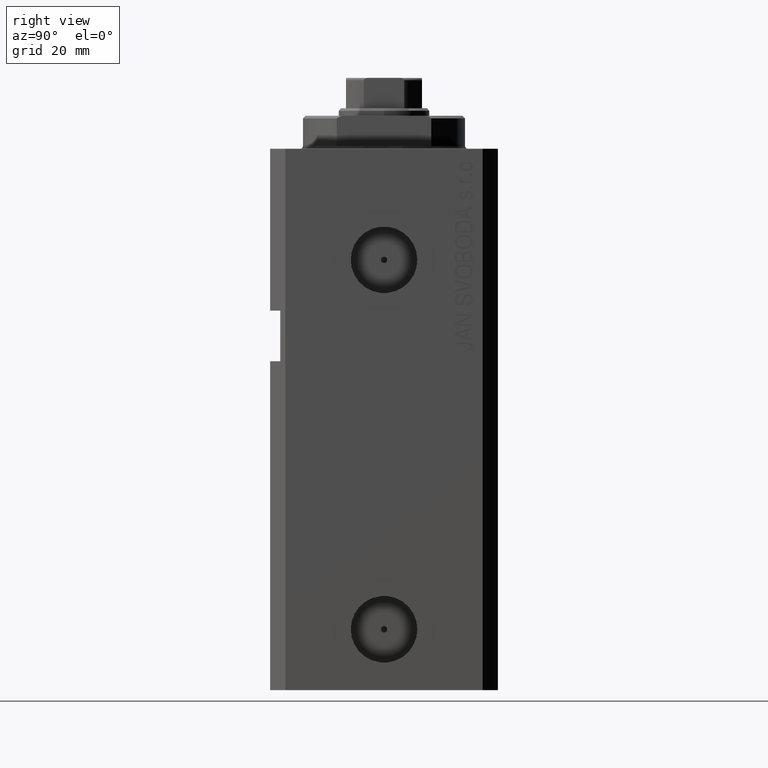
[diagram: clean part render]
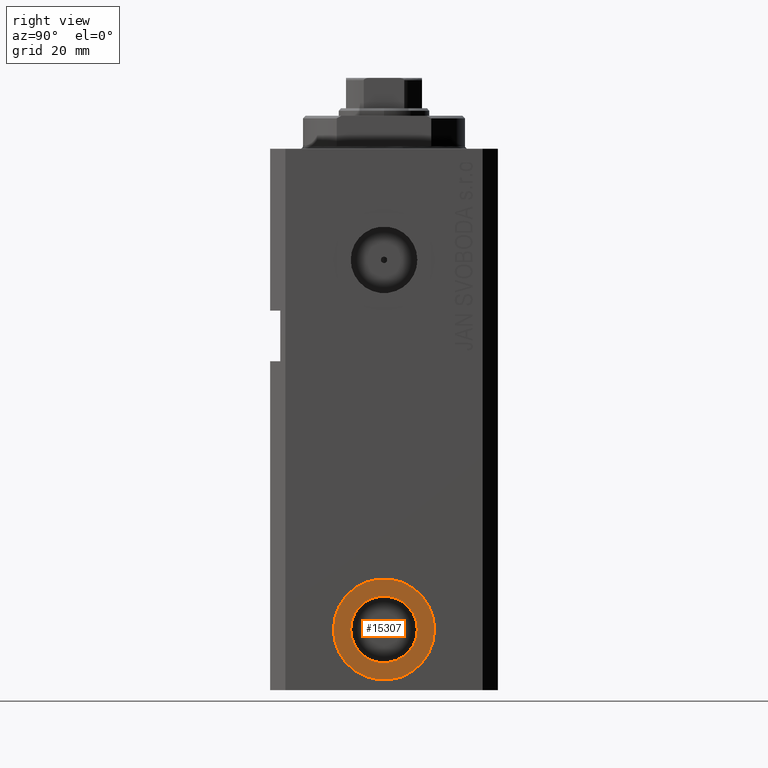
[diagram: same view with one face highlighted and labeled with its STEP entity id]
A machine part, right view. The second image highlights one B-rep face of the part: STEP entity #15307.
In plain terms, the highlighted planar face has unit normal (1, -0, 0).
Its self-contained STEP definition (entity closure, byte-faithful):
#1124 = EDGE_LOOP ( 'NONE', ( #29421, #20612 ) ) ;
#1137 = CARTESIAN_POINT ( 'NONE',  ( 32.39999999999677271, -4.323464663203420381E-13, -95.00000000000000000 ) ) ;
#1854 = CARTESIAN_POINT ( 'NONE',  ( 32.39999999999668034, -6.580000000000419291, -95.00000000000000000 ) ) ;
#2490 = DIRECTION ( 'NONE',  ( 1.370906090437600963E-14, 1.000000000000000000, 0.000000000000000000 ) ) ;
#3425 = CIRCLE ( 'NONE', #13724, 6.579999999999987637 ) ;
#5597 = AXIS2_PLACEMENT_3D ( 'NONE', #16645, #37786, #27002 ) ;
#5660 = AXIS2_PLACEMENT_3D ( 'NONE', #35426, #39795, #25559 ) ;
#5857 = VERTEX_POINT ( 'NONE', #20958 ) ;
#8094 = CARTESIAN_POINT ( 'NONE',  ( 32.39999999999663771, -10.00000000000042633, -95.00000000000000000 ) ) ;
#10485 = VERTEX_POINT ( 'NONE', #8094 ) ;
#13724 = AXIS2_PLACEMENT_3D ( 'NONE', #37674, #44567, #2490 ) ;
#15307 = ADVANCED_FACE ( 'NONE', ( #15704, #32511 ), #29729, .T. ) ;
#15704 = FACE_BOUND ( 'NONE', #1124, .T. ) ;
#16645 = CARTESIAN_POINT ( 'NONE',  ( 32.39999999999677271, -4.323464663203420381E-13, -95.00000000000000000 ) ) ;
#17337 = AXIS2_PLACEMENT_3D ( 'NONE', #1137, #42298, #21851 ) ;
#18841 = CIRCLE ( 'NONE', #5597, 6.579999999999987637 ) ;
#19816 = EDGE_CURVE ( 'NONE', #10485, #44959, #39362, .T. ) ;
#20612 = ORIENTED_EDGE ( 'NONE', *, *, #25686, .F. ) ;
#20958 = CARTESIAN_POINT ( 'NONE',  ( 32.39999999999686509, 6.579999999999555982, -95.00000000000000000 ) ) ;
#21851 = DIRECTION ( 'NONE',  ( 1.318389841742374023E-14, 1.000000000000000000, 0.000000000000000000 ) ) ;
#25119 = EDGE_CURVE ( 'NONE', #5857, #36699, #18841, .T. ) ;
#25559 = DIRECTION ( 'NONE',  ( 1.318389841742374023E-14, 1.000000000000000000, 0.000000000000000000 ) ) ;
#25663 = ORIENTED_EDGE ( 'NONE', *, *, #19816, .T. ) ;
#25686 = EDGE_CURVE ( 'NONE', #36699, #5857, #3425, .T. ) ;
#26919 = EDGE_LOOP ( 'NONE', ( #29960, #25663 ) ) ;
#26966 = EDGE_CURVE ( 'NONE', #44959, #10485, #30664, .T. ) ;
#27002 = DIRECTION ( 'NONE',  ( 1.370906090437600963E-14, 1.000000000000000000, 0.000000000000000000 ) ) ;
#29421 = ORIENTED_EDGE ( 'NONE', *, *, #25119, .F. ) ;
#29729 = PLANE ( 'NONE',  #38849 ) ;
#29960 = ORIENTED_EDGE ( 'NONE', *, *, #26966, .T. ) ;
#30664 = CIRCLE ( 'NONE', #5660, 9.999999999999994671 ) ;
#32288 = CARTESIAN_POINT ( 'NONE',  ( 32.39999999999677271, -4.323464663203420381E-13, -95.00000000000000000 ) ) ;
#32511 = FACE_OUTER_BOUND ( 'NONE', #26919, .T. ) ;
#35426 = CARTESIAN_POINT ( 'NONE',  ( 32.39999999999677271, -4.323464663203420381E-13, -95.00000000000000000 ) ) ;
#36699 = VERTEX_POINT ( 'NONE', #1854 ) ;
#37674 = CARTESIAN_POINT ( 'NONE',  ( 32.39999999999677271, -4.323464663203420381E-13, -95.00000000000000000 ) ) ;
#37786 = DIRECTION ( 'NONE',  ( 1.000000000000000000, -1.334402673828349134E-14, 0.000000000000000000 ) ) ;
#38842 = CARTESIAN_POINT ( 'NONE',  ( 32.39999999999690061, 9.999999999999563016, -95.00000000000000000 ) ) ;
#38849 = AXIS2_PLACEMENT_3D ( 'NONE', #32288, #40305, #43301 ) ;
#39362 = CIRCLE ( 'NONE', #17337, 9.999999999999994671 ) ;
#39795 = DIRECTION ( 'NONE',  ( 1.000000000000000000, -1.334402673828349134E-14, 0.000000000000000000 ) ) ;
#40305 = DIRECTION ( 'NONE',  ( 1.000000000000000000, -1.334402673828349134E-14, 0.000000000000000000 ) ) ;
#42298 = DIRECTION ( 'NONE',  ( 1.000000000000000000, -1.334402673828349134E-14, 0.000000000000000000 ) ) ;
#43301 = DIRECTION ( 'NONE',  ( 1.334402673828349134E-14, 1.000000000000000000, 0.000000000000000000 ) ) ;
#44567 = DIRECTION ( 'NONE',  ( 1.000000000000000000, -1.334402673828349134E-14, 0.000000000000000000 ) ) ;
#44959 = VERTEX_POINT ( 'NONE', #38842 ) ;